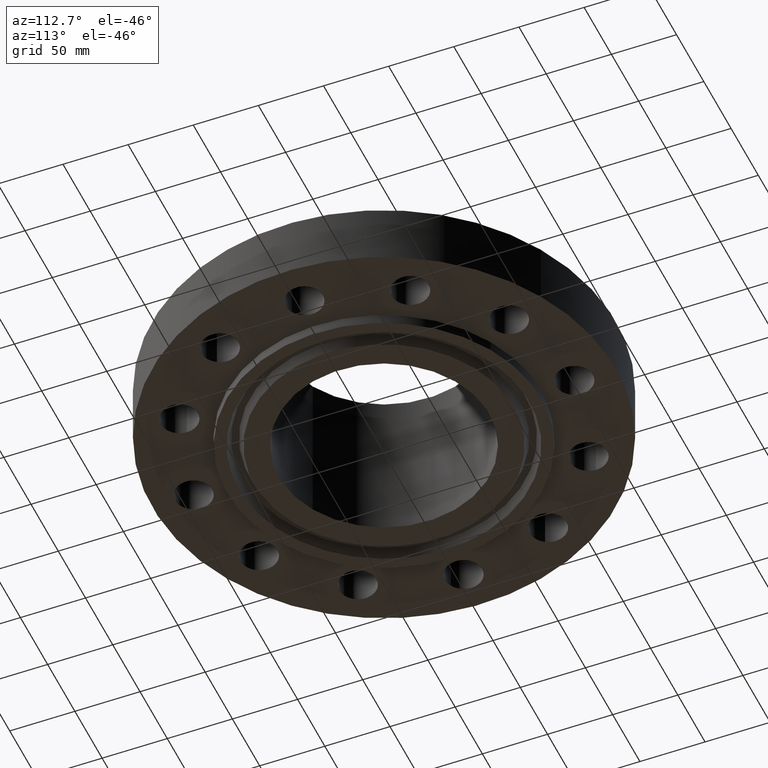
[diagram: clean part render]
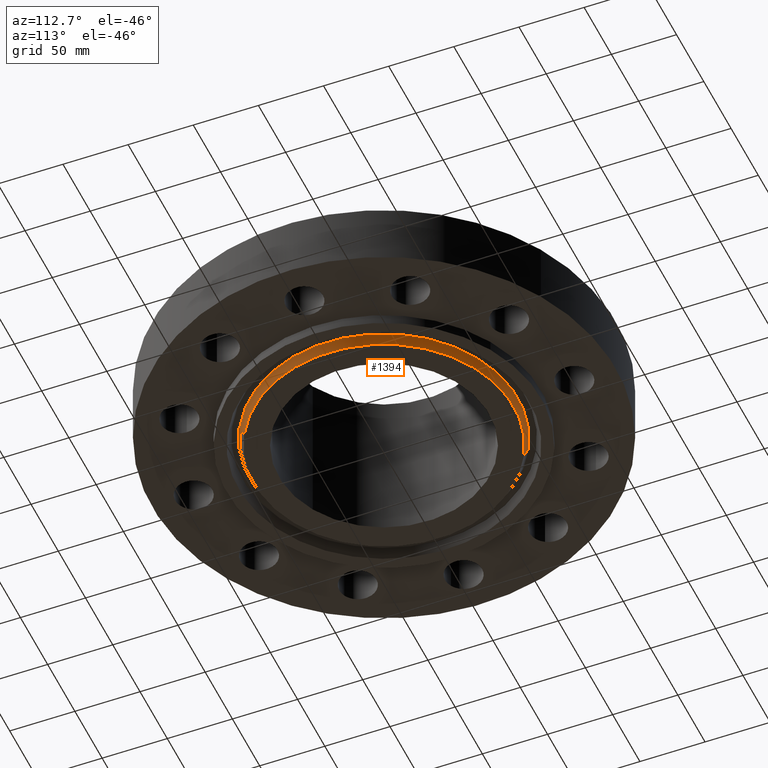
[diagram: same view with one face highlighted and labeled with its STEP entity id]
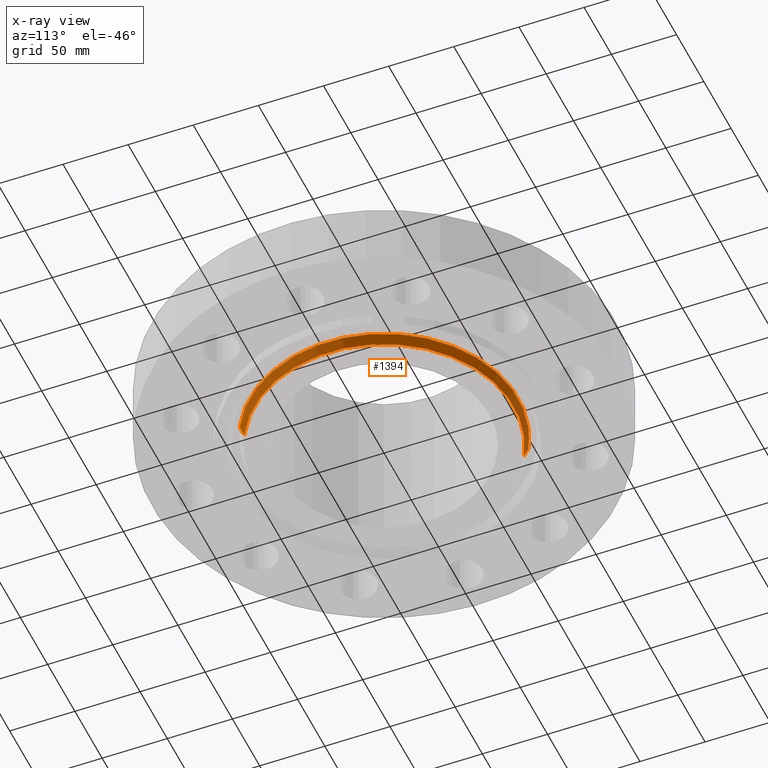
[diagram: x-ray of the same camera — body ghosted, the highlighted face saturated]
A machine part, auxiliary view. The second image highlights one B-rep face of the part: STEP entity #1394.
The next image is the same camera in x-ray: the body ghosted, the highlighted face saturated — about 0% of this face is hidden behind the body in this view.
In plain terms, the highlighted conical surface has half-angle 23 deg.
Its self-contained STEP definition (entity closure, byte-faithful):
#1200=AXIS2_PLACEMENT_3D('Circle Axis2P3D',#1198,#1199,$) ;
#1344=AXIS2_PLACEMENT_3D('Circle Axis2P3D',#1342,#1343,$) ;
#1376=AXIS2_PLACEMENT_3D('Cone Axis2P3D',#1373,#1374,#1375) ;
#1198=CARTESIAN_POINT('Axis2P3D Location',(0.,0.,-0.313000000001)) ;
#1202=CARTESIAN_POINT('Vertex',(-1.88030696241,3.44187880775,-0.313000000001)) ;
#1204=CARTESIAN_POINT('Vertex',(1.88030696241,-3.44187880775,-0.313000000001)) ;
#1339=CARTESIAN_POINT('Vertex',(1.94016008601,-3.55143921559,-0.0188873350169)) ;
#1342=CARTESIAN_POINT('Axis2P3D Location',(0.,0.,-0.0188873350169)) ;
#1346=CARTESIAN_POINT('Vertex',(-1.94016008601,3.55143921559,-0.0188873350169)) ;
#1373=CARTESIAN_POINT('Axis2P3D Location',(0.,0.,-0.373000000001)) ;
#1378=CARTESIAN_POINT('Line Origine',(-1.91023352421,3.49665901167,-0.165943667509)) ;
#1383=CARTESIAN_POINT('Line Origine',(1.91023352421,-3.49665901167,-0.165943667509)) ;
#1199=DIRECTION('Axis2P3D Direction',(0.,0.,-0.0393700787402)) ;
#1343=DIRECTION('Axis2P3D Direction',(0.,0.,0.0393700787402)) ;
#1374=DIRECTION('Axis2P3D Direction',(0.,0.,0.0393700787402)) ;
#1375=DIRECTION('Axis2P3D XDirection',(-0.0188750212049,0.0345504945626,0.)) ;
#1379=DIRECTION('Vector Direction',(-0.00737505833565,0.0134999537303,0.0362403485611)) ;
#1384=DIRECTION('Vector Direction',(0.00737505833565,-0.0134999537303,0.0362403485611)) ;
#1380=VECTOR('Line Direction',#1379,0.0393700787402) ;
#1385=VECTOR('Line Direction',#1384,0.0393700787402) ;
#1389=ORIENTED_EDGE('',*,*,#1382,.F.) ;
#1390=ORIENTED_EDGE('',*,*,#1348,.F.) ;
#1391=ORIENTED_EDGE('',*,*,#1387,.T.) ;
#1392=ORIENTED_EDGE('',*,*,#1206,.F.) ;
#1394=ADVANCED_FACE('PartBody',(#1393),#1377,.T.) ;
#1201=CIRCLE('generated circle',#1200,3.92200000002) ;
#1345=CIRCLE('generated circle',#1344,4.04684341943) ;
#1377=CONICAL_SURFACE('Cone',#1376,3.89653151104,0.401425727959) ;
#1206=EDGE_CURVE('',#1203,#1205,#1201,.T.) ;
#1348=EDGE_CURVE('',#1340,#1347,#1345,.T.) ;
#1382=EDGE_CURVE('',#1347,#1203,#1381,.F.) ;
#1387=EDGE_CURVE('',#1340,#1205,#1386,.F.) ;
#1388=EDGE_LOOP('',(#1389,#1390,#1391,#1392)) ;
#1393=FACE_OUTER_BOUND('',#1388,.T.) ;
#1381=LINE('Line',#1378,#1380) ;
#1386=LINE('Line',#1383,#1385) ;
#1203=VERTEX_POINT('',#1202) ;
#1205=VERTEX_POINT('',#1204) ;
#1340=VERTEX_POINT('',#1339) ;
#1347=VERTEX_POINT('',#1346) ;